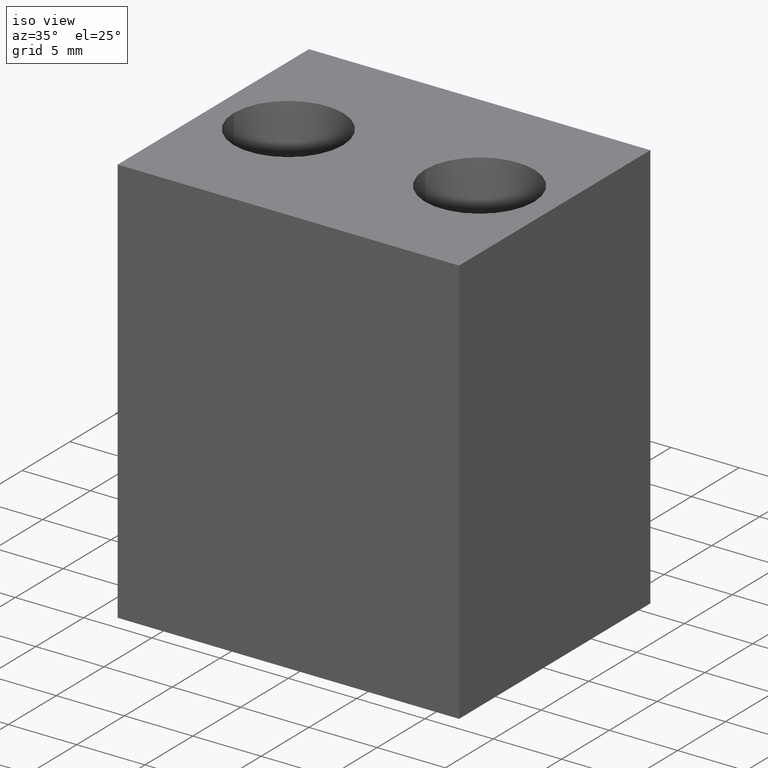
[diagram: clean part render]
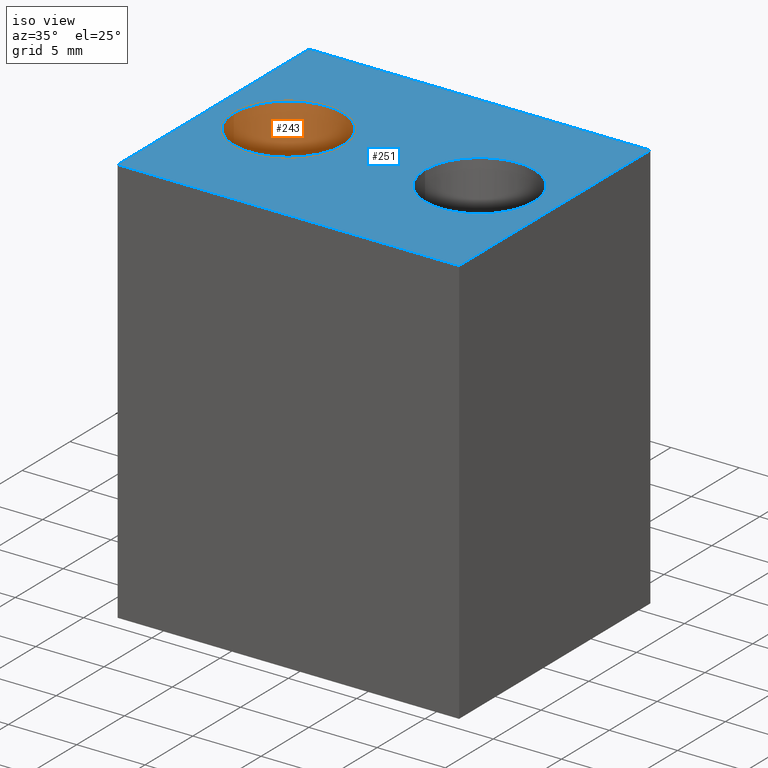
[diagram: same view with the hole feature highlighted: cylindrical wall and planar end face, labeled with their STEP entity ids]
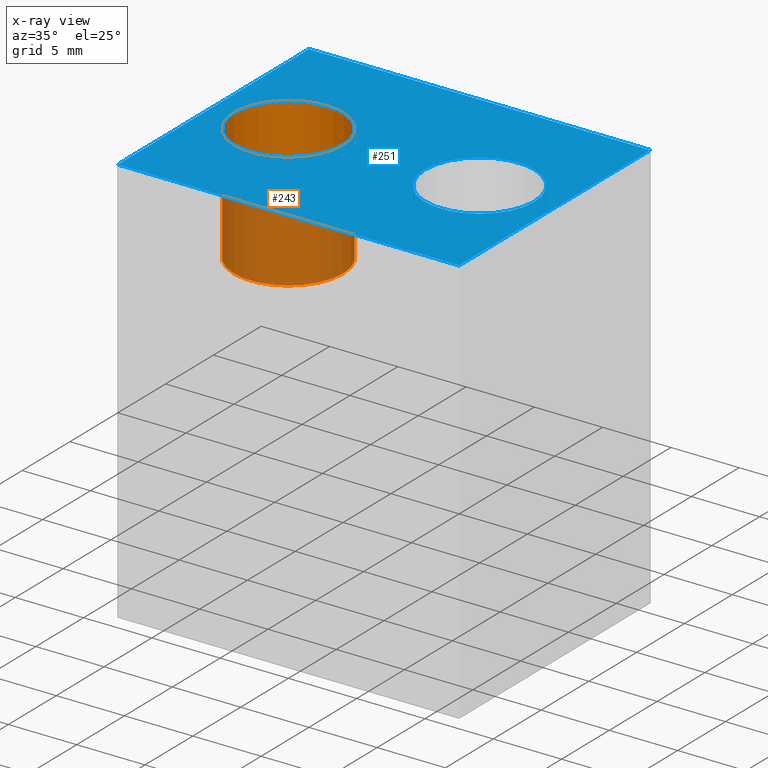
[diagram: x-ray of the same camera — body ghosted, the hole faces saturated]
A machine part, iso view. The highlighted faces form one hole feature of diameter 8 mm: the cylindrical wall (entity #243, orange) and its adjacent planar end face (entity #251, blue) — they share a circular edge in the B-rep.
The next image is the same camera in x-ray (body ghosted, the hole faces saturated) — the bore reads through the body.
Wall:
#39=FACE_OUTER_BOUND('',#58,.T.);
#58=EDGE_LOOP('',(#189,#190,#191,#192));
#76=LINE('',#412,#94);
#94=VECTOR('',#343,4.);
#118=CIRCLE('',#292,4.);
#119=CIRCLE('',#293,4.);
#130=VERTEX_POINT('',#409);
#131=VERTEX_POINT('',#411);
#153=EDGE_CURVE('',#130,#130,#118,.T.);
#154=EDGE_CURVE('',#130,#131,#76,.T.);
#155=EDGE_CURVE('',#131,#131,#119,.T.);
#189=ORIENTED_EDGE('',*,*,#153,.F.);
#190=ORIENTED_EDGE('',*,*,#154,.T.);
#191=ORIENTED_EDGE('',*,*,#155,.F.);
#192=ORIENTED_EDGE('',*,*,#154,.F.);
#234=CYLINDRICAL_SURFACE('',#291,4.);
#243=ADVANCED_FACE('',(#39),#234,.F.);
#291=AXIS2_PLACEMENT_3D('',#408,#339,#340);
#292=AXIS2_PLACEMENT_3D('',#410,#341,#342);
#293=AXIS2_PLACEMENT_3D('',#413,#344,#345);
#339=DIRECTION('center_axis',(0.,0.,1.));
#340=DIRECTION('ref_axis',(1.,0.,0.));
#341=DIRECTION('center_axis',(0.,0.,-1.));
#342=DIRECTION('ref_axis',(1.,0.,0.));
#343=DIRECTION('',(0.,0.,-1.));
#344=DIRECTION('center_axis',(0.,0.,1.));
#345=DIRECTION('ref_axis',(1.,0.,0.));
#408=CARTESIAN_POINT('Origin',(-7.,-8.86231387054631E-16,25.75));
#409=CARTESIAN_POINT('',(-11.,-1.37609010671357E-15,30.));
#410=CARTESIAN_POINT('Origin',(-7.,-8.86231387054631E-16,30.));
#411=CARTESIAN_POINT('',(-11.,-1.37609010671357E-15,21.5));
#412=CARTESIAN_POINT('',(-11.,-1.37609010671357E-15,25.75));
#413=CARTESIAN_POINT('Origin',(-7.,-8.86231387054631E-16,21.5));
End face:
#19=FACE_BOUND('',#68,.T.);
#20=FACE_BOUND('',#69,.T.);
#31=PLANE('',#302);
#47=FACE_OUTER_BOUND('',#67,.T.);
#67=EDGE_LOOP('',(#219,#220,#221,#222));
#68=EDGE_LOOP('',(#223));
#69=EDGE_LOOP('',(#224));
#81=LINE('',#428,#99);
#84=LINE('',#434,#102);
#87=LINE('',#440,#105);
#90=LINE('',#444,#108);
#99=VECTOR('',#360,10.);
#102=VECTOR('',#365,10.);
#105=VECTOR('',#370,10.);
#108=VECTOR('',#375,10.);
#115=CIRCLE('',#287,4.);
#118=CIRCLE('',#292,4.);
#127=VERTEX_POINT('',#400);
#130=VERTEX_POINT('',#409);
#135=VERTEX_POINT('',#425);
#136=VERTEX_POINT('',#427);
#138=VERTEX_POINT('',#433);
#140=VERTEX_POINT('',#439);
#149=EDGE_CURVE('',#127,#127,#115,.T.);
#153=EDGE_CURVE('',#130,#130,#118,.T.);
#161=EDGE_CURVE('',#136,#135,#81,.T.);
#164=EDGE_CURVE('',#138,#136,#84,.T.);
#167=EDGE_CURVE('',#140,#138,#87,.T.);
#170=EDGE_CURVE('',#135,#140,#90,.T.);
#219=ORIENTED_EDGE('',*,*,#170,.T.);
#220=ORIENTED_EDGE('',*,*,#167,.T.);
#221=ORIENTED_EDGE('',*,*,#164,.T.);
#222=ORIENTED_EDGE('',*,*,#161,.T.);
#223=ORIENTED_EDGE('',*,*,#149,.T.);
#224=ORIENTED_EDGE('',*,*,#153,.T.);
#251=ADVANCED_FACE('',(#47,#19,#20),#31,.T.);
#287=AXIS2_PLACEMENT_3D('',#401,#330,#331);
#292=AXIS2_PLACEMENT_3D('',#410,#341,#342);
#302=AXIS2_PLACEMENT_3D('',#445,#376,#377);
#330=DIRECTION('center_axis',(0.,0.,-1.));
#331=DIRECTION('ref_axis',(1.,0.,0.));
#341=DIRECTION('center_axis',(0.,0.,-1.));
#342=DIRECTION('ref_axis',(1.,0.,0.));
#360=DIRECTION('',(1.,4.44089209850063E-17,0.));
#365=DIRECTION('',(3.33066907387547E-16,-1.,0.));
#370=DIRECTION('',(-1.,1.77635683940025E-16,0.));
#375=DIRECTION('',(-2.22044604925031E-16,1.,0.));
#376=DIRECTION('center_axis',(0.,0.,1.));
#377=DIRECTION('ref_axis',(1.,0.,0.));
#400=CARTESIAN_POINT('',(3.,4.84115883118731E-15,30.));
#401=CARTESIAN_POINT('Origin',(7.,5.33101755084625E-15,30.));
#409=CARTESIAN_POINT('',(-11.,-1.37609010671357E-15,30.));
#410=CARTESIAN_POINT('Origin',(-7.,-8.86231387054631E-16,30.));
#425=CARTESIAN_POINT('',(12.5,-10.,30.));
#427=CARTESIAN_POINT('',(-12.5,-10.,30.));
#428=CARTESIAN_POINT('',(-12.5,-10.,30.));
#433=CARTESIAN_POINT('',(-12.5,10.,30.));
#434=CARTESIAN_POINT('',(-12.5,10.,30.));
#439=CARTESIAN_POINT('',(12.5,10.,30.));
#440=CARTESIAN_POINT('',(12.5,10.,30.));
#444=CARTESIAN_POINT('',(12.5,-10.,30.));
#445=CARTESIAN_POINT('Origin',(-1.11022302462516E-15,4.44089209850063E-15,
30.));